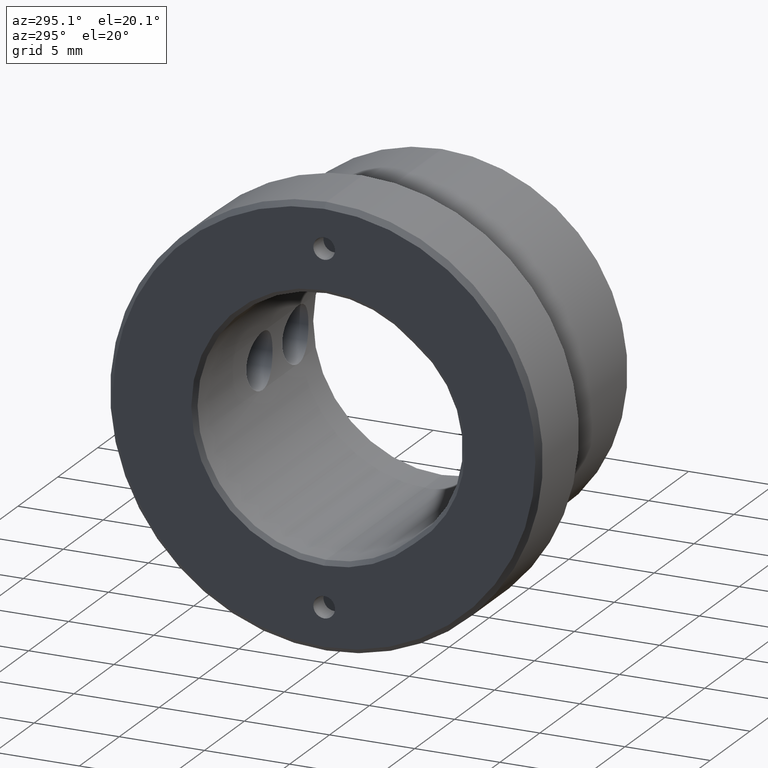
[diagram: clean part render]
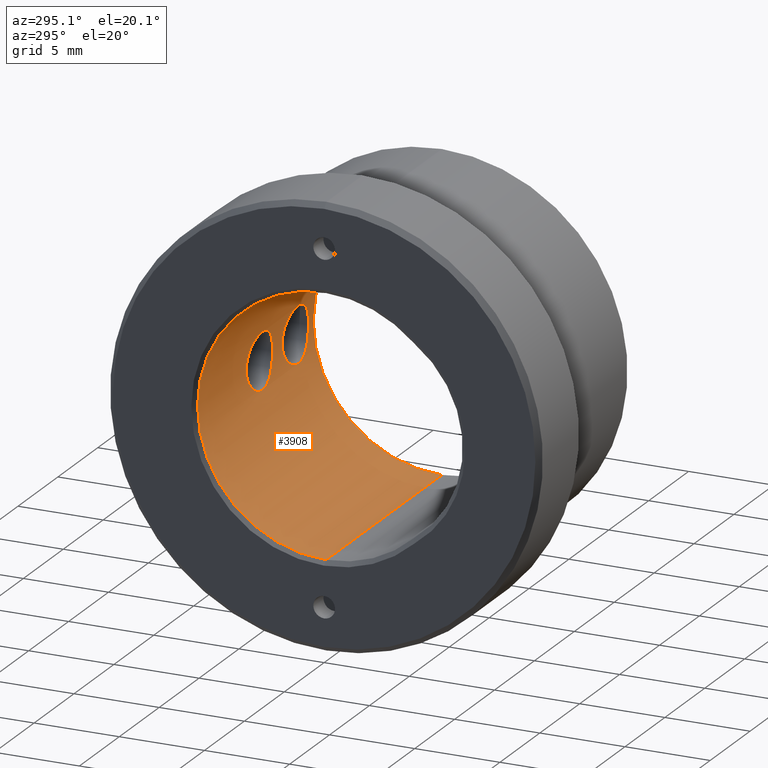
[diagram: same view with one face highlighted and labeled with its STEP entity id]
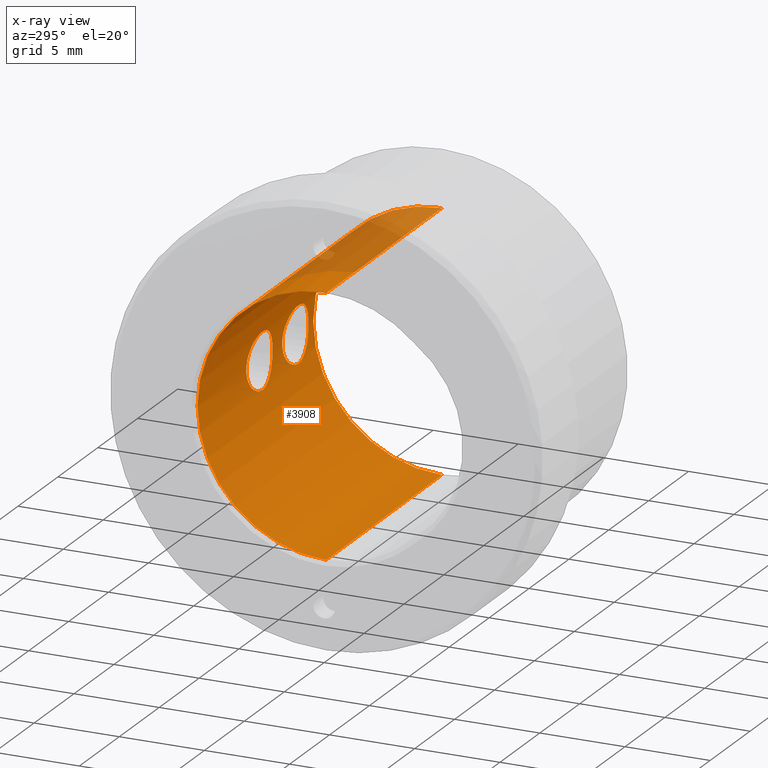
[diagram: x-ray of the same camera — body ghosted, the highlighted face saturated]
A machine part, auxiliary view. The second image highlights one B-rep face of the part: STEP entity #3908.
The next image is the same camera in x-ray: the body ghosted, the highlighted face saturated — about 10% of this face is hidden behind the body in this view.
In plain terms, the highlighted cylindrical surface (partial cylindrical patch) has radius 7.55 mm, axis along (-1, -0, -0).
Its self-contained STEP definition (entity closure, byte-faithful):
#58 = CARTESIAN_POINT ( 'NONE',  ( 0.2499999999999967500, 0.0000000000000000000, 0.0000000000000000000 ) ) ;
#69 = CARTESIAN_POINT ( 'NONE',  ( 9.650042575250607200, 7.550009304524274400, -0.1073363608088370400 ) ) ;
#83 = EDGE_CURVE ( 'NONE', #2775, #788, #2090, .T. ) ;
#90 = CARTESIAN_POINT ( 'NONE',  ( 14.15004257525060200, 7.550009304524274400, -0.1073363608088380200 ) ) ;
#114 = CARTESIAN_POINT ( 'NONE',  ( 11.67222748381330200, 7.413318146423143200, -1.431410878810329000 ) ) ;
#156 = CARTESIAN_POINT ( 'NONE',  ( 10.84995346425963400, 7.550010170061572300, 0.1081851496566004600 ) ) ;
#160 = CARTESIAN_POINT ( 'NONE',  ( 6.402596446735329600, 7.538652208696569300, 0.4271282737250882100 ) ) ;
#222 = AXIS2_PLACEMENT_3D ( 'NONE', #58, #2255, #652 ) ;
#223 = CARTESIAN_POINT ( 'NONE',  ( 12.49999999999999800, 7.367496182557546900, -1.649999999999992600 ) ) ;
#343 = CARTESIAN_POINT ( 'NONE',  ( 13.03250685552225500, 7.386047717079979000, -1.565433213492498200 ) ) ;
#350 = CARTESIAN_POINT ( 'NONE',  ( 11.49284813091026800, 7.435484751443143900, -1.311407471047682000 ) ) ;
#353 = CARTESIAN_POINT ( 'NONE',  ( 13.94149156987591600, 7.506756197861075300, 0.8311245946401043500 ) ) ;
#363 = B_SPLINE_CURVE_WITH_KNOTS ( 'NONE', 3,
 ( #1045, #2314, #1395, #446, #430, #779, #2035, #1085, #763, #2618, #1368, #1407, #3591, #2928, #1718, #160, #1705, #2632, #2942, #3552, #3878, #751, #2967, #3258, #1097, #3284 ),
 .UNSPECIFIED., .F., .F.,
 ( 4, 2, 2, 2, 2, 2, 2, 2, 2, 2, 2, 2, 4 ),
 ( 0.005174276572213011600, 0.005820890057941798500, 0.006144196800806194100, 0.006467503543670588900, 0.006790810286534983700, 0.007114117029399378400, 0.007760730515128170600, 0.008084037257992567100, 0.008407344000856962700, 0.009053957486585752200, 0.009700570972314543500, 0.01002387771517894100, 0.01034718445804333600 ),
 .UNSPECIFIED. ) ;
#372 = CARTESIAN_POINT ( 'NONE',  ( 12.50000000000000000, 7.367496182557546000, 1.649999999999992600 ) ) ;
#395 = CARTESIAN_POINT ( 'NONE',  ( 8.429638086257888600, 7.379251367485811600, -1.596753308477472100 ) ) ;
#425 = CARTESIAN_POINT ( 'NONE',  ( 10.90259644673532900, 7.538652208696567500, 0.4271282737250907100 ) ) ;
#430 = CARTESIAN_POINT ( 'NONE',  ( 7.172227483813302700, 7.413318146423141500, -1.431410878810329700 ) ) ;
#446 = CARTESIAN_POINT ( 'NONE',  ( 7.268628522956301900, 7.403047408088682800, -1.482955722260139300 ) ) ;
#482 = CARTESIAN_POINT ( 'NONE',  ( 11.48407202336760400, 7.435706328169265700, 1.317698438870044100 ) ) ;
#538 = EDGE_CURVE ( 'NONE', #975, #1061, #927, .T. ) ;
#552 = CARTESIAN_POINT ( 'NONE',  ( 0.2499999999999967500, 0.0000000000000000000, 7.549999999999999800 ) ) ;
#562 = EDGE_CURVE ( 'NONE', #1217, #2581, #1028, .T. ) ;
#652 = DIRECTION ( 'NONE',  ( 0.0000000000000000000, 0.0000000000000000000, -1.000000000000000000 ) ) ;
#663 = CARTESIAN_POINT ( 'NONE',  ( 14.10626795706226800, 7.540131790491947200, 0.4342456539264571400 ) ) ;
#688 = CARTESIAN_POINT ( 'NONE',  ( 8.827490050003470800, 7.413288169064037100, 1.431560640407858700 ) ) ;
#702 = CARTESIAN_POINT ( 'NONE',  ( 8.731858700189613700, 7.403090873739658100, -1.482743248185747900 ) ) ;
#706 = CARTESIAN_POINT ( 'NONE',  ( 14.06564643860013100, 7.531905221089373500, -0.5319720460853245600 ) ) ;
#733 = CARTESIAN_POINT ( 'NONE',  ( 8.107870425101650000, 7.367496182557546000, -1.649999999999993500 ) ) ;
#751 = CARTESIAN_POINT ( 'NONE',  ( 7.465122541343775200, 7.386225137069062400, 1.564594660715583600 ) ) ;
#763 = CARTESIAN_POINT ( 'NONE',  ( 6.688355436307492000, 7.483112087300542100, -1.006784240855641600 ) ) ;
#774 = CARTESIAN_POINT ( 'NONE',  ( 11.96512254134377400, 7.386225137069059700, 1.564594660715583800 ) ) ;
#779 = CARTESIAN_POINT ( 'NONE',  ( 6.992848130910271500, 7.435484751443145700, -1.311407471047683100 ) ) ;
#788 = VERTEX_POINT ( 'NONE', #552 ) ;
#831 = CARTESIAN_POINT ( 'NONE',  ( 0.2499999999999967500, 9.246083333562516700E-016, -7.549999999999999800 ) ) ;
#927 = B_SPLINE_CURVE_WITH_KNOTS ( 'NONE', 3,
 ( #2561, #1350, #3224, #1989, #1947, #1675, #688, #2851, #991, #1029, #3827, #3840, #1973, #69, #1335, #2864, #3533, #3524, #2603, #3492, #2267, #2281, #702, #1643, #395, #2252, #733, #1661 ),
 .UNSPECIFIED., .F., .F.,
 ( 4, 2, 2, 2, 2, 2, 2, 2, 2, 2, 2, 2, 2, 4 ),
 ( 0.0000000000000000000, 0.0003233922857633138700, 0.0006467845715266277500, 0.0009701768572899417300, 0.001293569143053255500, 0.001940353714579882600, 0.002587138286106509700, 0.002910530571869823800, 0.003233922857633137400, 0.003880707429159765200, 0.004204099714923076700, 0.004527492000686388600, 0.004850884286449699600, 0.005174276572213011600 ),
 .UNSPECIFIED. ) ;
#955 = CYLINDRICAL_SURFACE ( 'NONE', #1541, 7.549999999999999800 ) ;
#973 = CARTESIAN_POINT ( 'NONE',  ( 14.75000000000000400, 0.0000000000000000000, 0.0000000000000000000 ) ) ;
#975 = VERTEX_POINT ( 'NONE', #3606 ) ;
#984 = CARTESIAN_POINT ( 'NONE',  ( 12.92963808625788700, 7.379251367485811600, -1.596753308477471000 ) ) ;
#991 = CARTESIAN_POINT ( 'NONE',  ( 9.091143952821255400, 7.447481726496986800, 1.242342002891957600 ) ) ;
#1028 = B_SPLINE_CURVE_WITH_KNOTS ( 'NONE', 3,
 ( #1308, #2295, #1363, #3188, #114, #350, #1618, #3812, #3915, #1727, #2032, #3887, #1433, #156, #3617, #425, #1093, #3947, #3934, #482, #3602, #774, #1379, #3562, #3237, #3899 ),
 .UNSPECIFIED., .F., .F.,
 ( 4, 2, 2, 2, 2, 2, 2, 2, 2, 2, 2, 2, 4 ),
 ( 0.005174276572213010700, 0.005820890057941806300, 0.006144196800806201100, 0.006467503543670596700, 0.006790810286534991500, 0.007114117029399386200, 0.007760730515128176600, 0.008084037257992572300, 0.008407344000856967900, 0.009053957486585759200, 0.009700570972314550400, 0.01002387771517894400, 0.01034718445804334000 ),
 .UNSPECIFIED. ) ;
#1029 = CARTESIAN_POINT ( 'NONE',  ( 9.318666561189900200, 7.483076724350284300, 1.014718489095183900 ) ) ;
#1045 = CARTESIAN_POINT ( 'NONE',  ( 8.000000000000000000, 7.367496182557546000, -1.649999999999993500 ) ) ;
#1061 = VERTEX_POINT ( 'NONE', #2654 ) ;
#1085 = CARTESIAN_POINT ( 'NONE',  ( 6.757836745639281200, 7.471099059084455300, -1.091374026934202500 ) ) ;
#1093 = CARTESIAN_POINT ( 'NONE',  ( 10.93453240110041600, 7.531869152661635700, 0.5323896248454487200 ) ) ;
#1097 = CARTESIAN_POINT ( 'NONE',  ( 7.890652729299774600, 7.367496182557544200, 1.649999999999993200 ) ) ;
#1110 = ORIENTED_EDGE ( 'NONE', *, *, #3099, .T. ) ;
#1173 = EDGE_LOOP ( 'NONE', ( #1110, #4077 ) ) ;
#1205 = LINE ( 'NONE', #2269, #1354 ) ;
#1217 = VERTEX_POINT ( 'NONE', #223 ) ;
#1297 = CARTESIAN_POINT ( 'NONE',  ( 12.60787042510165500, 7.367496182557549600, -1.649999999999993700 ) ) ;
#1302 = DIRECTION ( 'NONE',  ( 0.0000000000000000000, 0.0000000000000000000, -1.000000000000000000 ) ) ;
#1308 = CARTESIAN_POINT ( 'NONE',  ( 12.49999999999999800, 7.367496182557546900, -1.649999999999992600 ) ) ;
#1311 = CARTESIAN_POINT ( 'NONE',  ( 14.14991446245525700, 7.549981306365785000, 0.2166302022949852200 ) ) ;
#1335 = CARTESIAN_POINT ( 'NONE',  ( 9.639224549521712100, 7.547624158386394600, -0.2170583249850983300 ) ) ;
#1338 = CARTESIAN_POINT ( 'NONE',  ( 13.81866656118989500, 7.483076724350285100, 1.014718489095182800 ) ) ;
#1348 = EDGE_CURVE ( 'NONE', #3474, #3761, #1205, .T. ) ;
#1350 = CARTESIAN_POINT ( 'NONE',  ( 8.109376202613123800, 7.367496182557546000, 1.649999999999993700 ) ) ;
#1354 = VECTOR ( 'NONE', #1964, 1000.000000000000000 ) ;
#1363 = CARTESIAN_POINT ( 'NONE',  ( 12.06660248078671500, 7.377578204638844300, -1.606522404701693100 ) ) ;
#1368 = CARTESIAN_POINT ( 'NONE',  ( 6.518139305260763900, 7.514934905778913400, -0.7337312531578729100 ) ) ;
#1379 = CARTESIAN_POINT ( 'NONE',  ( 12.06995407325534100, 7.379270766438144900, 1.596664600924206000 ) ) ;
#1395 = CARTESIAN_POINT ( 'NONE',  ( 7.566602480786708700, 7.377578204638843400, -1.606522404701693700 ) ) ;
#1407 = CARTESIAN_POINT ( 'NONE',  ( 6.393155655669840300, 7.540244745685035000, -0.4331765632959330700 ) ) ;
#1418 = EDGE_LOOP ( 'NONE', ( #3612, #2674, #2771, #3568 ) ) ;
#1433 = CARTESIAN_POINT ( 'NONE',  ( 10.85009352644559900, 7.549979560447455100, -0.2184925980058583000 ) ) ;
#1541 = AXIS2_PLACEMENT_3D ( 'NONE', #2520, #3187, #1988 ) ;
#1618 = CARTESIAN_POINT ( 'NONE',  ( 11.41001944183817500, 7.447308857388644100, -1.243386182961606400 ) ) ;
#1638 = DIRECTION ( 'NONE',  ( 1.000000000000000000, -0.0000000000000000000, -0.0000000000000000000 ) ) ;
#1643 = CARTESIAN_POINT ( 'NONE',  ( 8.532506855522257200, 7.386047717079980800, -1.565433213492499100 ) ) ;
#1644 = CARTESIAN_POINT ( 'NONE',  ( 14.75000000000000400, 0.0000000000000000000, 7.549999999999999800 ) ) ;
#1661 = CARTESIAN_POINT ( 'NONE',  ( 8.000000000000000000, 7.367496182557546000, -1.649999999999993500 ) ) ;
#1675 = CARTESIAN_POINT ( 'NONE',  ( 8.732845435019484600, 7.403186414490172700, 1.482269878471758300 ) ) ;
#1705 = CARTESIAN_POINT ( 'NONE',  ( 6.434532401100415000, 7.531869152661636600, 0.5323896248454470500 ) ) ;
#1718 = CARTESIAN_POINT ( 'NONE',  ( 6.360582026827768400, 7.547666546851631100, 0.2155119101994667800 ) ) ;
#1727 = CARTESIAN_POINT ( 'NONE',  ( 11.06895184358016800, 7.504961950312070600, -0.8283279200333533200 ) ) ;
#1751 = VECTOR ( 'NONE', #3481, 1000.000000000000000 ) ;
#1850 = EDGE_CURVE ( 'NONE', #788, #3761, #2229, .T. ) ;
#1937 = CARTESIAN_POINT ( 'NONE',  ( 12.71741357021782000, 7.369941011968327500, -1.639189236416049600 ) ) ;
#1947 = CARTESIAN_POINT ( 'NONE',  ( 8.533181931363026600, 7.386094341937082100, 1.565216742921431600 ) ) ;
#1964 = DIRECTION ( 'NONE',  ( -1.000000000000000000, -0.0000000000000000000, -0.0000000000000000000 ) ) ;
#1973 = CARTESIAN_POINT ( 'NONE',  ( 9.649914462455260600, 7.549981306365785900, 0.2166302022949863900 ) ) ;
#1988 = DIRECTION ( 'NONE',  ( 0.0000000000000000000, 0.0000000000000000000, 1.000000000000000000 ) ) ;
#1989 = CARTESIAN_POINT ( 'NONE',  ( 8.428200647547722500, 7.379174109485785700, 1.597108148841726700 ) ) ;
#2032 = CARTESIAN_POINT ( 'NONE',  ( 11.01813930526076000, 7.514934905778911700, -0.7337312531578718000 ) ) ;
#2035 = CARTESIAN_POINT ( 'NONE',  ( 6.910019441838178600, 7.447308857388645000, -1.243386182961608000 ) ) ;
#2036 = CIRCLE ( 'NONE', #3819, 7.549999999999999800 ) ;
#2090 = LINE ( 'NONE', #2172, #1751 ) ;
#2171 = CARTESIAN_POINT ( 'NONE',  ( 12.60937620261312600, 7.367496182557547800, 1.649999999999993000 ) ) ;
#2172 = CARTESIAN_POINT ( 'NONE',  ( 15.00000000000000000, 0.0000000000000000000, 7.549999999999999800 ) ) ;
#2182 = B_SPLINE_CURVE_WITH_KNOTS ( 'NONE', 3,
 ( #3411, #2171, #2837, #3172, #4051, #2410, #3202, #2226, #3213, #1338, #353, #663, #1311, #90, #3191, #2578, #706, #3165, #3512, #2841, #2240, #2541, #3528, #343, #984, #1937, #1297, #3485 ),
 .UNSPECIFIED., .F., .F.,
 ( 4, 2, 2, 2, 2, 2, 2, 2, 2, 2, 2, 2, 2, 4 ),
 ( 1.748223473168675600E-018, 0.0003233922857633127900, 0.0006467845715266238400, 0.0009701768572899349000, 0.001293569143053246000, 0.001940353714579871700, 0.002587138286106497500, 0.002910530571869809900, 0.003233922857633123600, 0.003880707429159750400, 0.004204099714923065400, 0.004527492000686380800, 0.004850884286449695300, 0.005174276572213010700 ),
 .UNSPECIFIED. ) ;
#2226 = CARTESIAN_POINT ( 'NONE',  ( 13.50660650665226500, 7.435412453520299000, 1.311811339631211700 ) ) ;
#2229 = CIRCLE ( 'NONE', #222, 7.549999999999999800 ) ;
#2240 = CARTESIAN_POINT ( 'NONE',  ( 13.50693362418114800, 7.435460795871580200, -1.311529486362892800 ) ) ;
#2252 = CARTESIAN_POINT ( 'NONE',  ( 8.217413570217816600, 7.369941011968326600, -1.639189236416050300 ) ) ;
#2255 = DIRECTION ( 'NONE',  ( -1.000000000000000000, 0.0000000000000000000, 0.0000000000000000000 ) ) ;
#2267 = CARTESIAN_POINT ( 'NONE',  ( 9.006933624181147700, 7.435460795871579300, -1.311529486362893500 ) ) ;
#2269 = CARTESIAN_POINT ( 'NONE',  ( 15.00000000000000000, 9.246083333562516700E-016, -7.549999999999999800 ) ) ;
#2281 = CARTESIAN_POINT ( 'NONE',  ( 8.828499418305900900, 7.413404967325732300, -1.430948507449756300 ) ) ;
#2295 = CARTESIAN_POINT ( 'NONE',  ( 12.28431621701368400, 7.367496182557548700, -1.649999999999993000 ) ) ;
#2299 = EDGE_CURVE ( 'NONE', #3474, #2775, #2036, .T. ) ;
#2314 = CARTESIAN_POINT ( 'NONE',  ( 7.784316217013681300, 7.367496182557546000, -1.649999999999993000 ) ) ;
#2410 = CARTESIAN_POINT ( 'NONE',  ( 13.23284543501949000, 7.403186414490175300, 1.482269878471757000 ) ) ;
#2428 = FACE_OUTER_BOUND ( 'NONE', #1418, .T. ) ;
#2520 = CARTESIAN_POINT ( 'NONE',  ( 15.00000000000000000, 0.0000000000000000000, 0.0000000000000000000 ) ) ;
#2541 = CARTESIAN_POINT ( 'NONE',  ( 13.32849941830589700, 7.413404967325732300, -1.430948507449755400 ) ) ;
#2561 = CARTESIAN_POINT ( 'NONE',  ( 8.000000000000000000, 7.367496182557546000, 1.649999999999993500 ) ) ;
#2578 = CARTESIAN_POINT ( 'NONE',  ( 14.09692709993289300, 7.538550886941292700, -0.4289467072958162400 ) ) ;
#2581 = VERTEX_POINT ( 'NONE', #372 ) ;
#2603 = CARTESIAN_POINT ( 'NONE',  ( 9.319737037743975000, 7.483234815591838000, -1.013770499748463800 ) ) ;
#2618 = CARTESIAN_POINT ( 'NONE',  ( 6.568951843580169500, 7.504961950312074100, -0.8283279200333543100 ) ) ;
#2632 = CARTESIAN_POINT ( 'NONE',  ( 6.558439392418130800, 7.506767180602974300, 0.8312118129921916000 ) ) ;
#2644 = CARTESIAN_POINT ( 'NONE',  ( 14.75000000000000400, 9.246083333562516700E-016, -7.549999999999999800 ) ) ;
#2654 = CARTESIAN_POINT ( 'NONE',  ( 8.000000000000000000, 7.367496182557546000, -1.649999999999993500 ) ) ;
#2674 = ORIENTED_EDGE ( 'NONE', *, *, #2299, .T. ) ;
#2771 = ORIENTED_EDGE ( 'NONE', *, *, #83, .T. ) ;
#2775 = VERTEX_POINT ( 'NONE', #1644 ) ;
#2837 = CARTESIAN_POINT ( 'NONE',  ( 12.71685622990116100, 7.369930893026880100, 1.639232628155622200 ) ) ;
#2841 = CARTESIAN_POINT ( 'NONE',  ( 13.58990544707439300, 7.447292679067044400, -1.243519294251574000 ) ) ;
#2851 = CARTESIAN_POINT ( 'NONE',  ( 9.006606506652262900, 7.435412453520300800, 1.311811339631213700 ) ) ;
#2864 = CARTESIAN_POINT ( 'NONE',  ( 9.596927099932891300, 7.538550886941291800, -0.4289467072958155800 ) ) ;
#2928 = CARTESIAN_POINT ( 'NONE',  ( 6.349953464259636200, 7.550010170061575800, 0.1081851496565990800 ) ) ;
#2942 = CARTESIAN_POINT ( 'NONE',  ( 6.681133219959495100, 7.483116231127676000, 1.014410787605562100 ) ) ;
#2967 = CARTESIAN_POINT ( 'NONE',  ( 7.569954073255342300, 7.379270766438144900, 1.596664600924207400 ) ) ;
#2975 = ORIENTED_EDGE ( 'NONE', *, *, #538, .T. ) ;
#3099 = EDGE_CURVE ( 'NONE', #2581, #1217, #2182, .T. ) ;
#3165 = CARTESIAN_POINT ( 'NONE',  ( 13.94111092478094000, 7.506676405214965300, -0.8322688367030173200 ) ) ;
#3172 = CARTESIAN_POINT ( 'NONE',  ( 12.92820064754772200, 7.379174109485786600, 1.597108148841726000 ) ) ;
#3187 = DIRECTION ( 'NONE',  ( -1.000000000000000000, -0.0000000000000000000, -0.0000000000000000000 ) ) ;
#3188 = CARTESIAN_POINT ( 'NONE',  ( 11.76862852295630400, 7.403047408088683700, -1.482955722260139100 ) ) ;
#3191 = CARTESIAN_POINT ( 'NONE',  ( 14.13922454952171000, 7.547624158386397200, -0.2170583249850988600 ) ) ;
#3199 = FACE_BOUND ( 'NONE', #3310, .T. ) ;
#3202 = CARTESIAN_POINT ( 'NONE',  ( 13.32749005000347300, 7.413288169064038900, 1.431560640407856900 ) ) ;
#3213 = CARTESIAN_POINT ( 'NONE',  ( 13.59114395282125400, 7.447481726496987700, 1.242342002891955800 ) ) ;
#3224 = CARTESIAN_POINT ( 'NONE',  ( 8.216856229901159400, 7.369930893026879200, 1.639232628155622700 ) ) ;
#3237 = CARTESIAN_POINT ( 'NONE',  ( 12.39065272929977700, 7.367496182557546000, 1.649999999999992800 ) ) ;
#3258 = CARTESIAN_POINT ( 'NONE',  ( 7.782785118837114900, 7.369930790034432600, 1.639236115498777600 ) ) ;
#3284 = CARTESIAN_POINT ( 'NONE',  ( 8.000000000000000000, 7.367496182557546000, 1.649999999999993500 ) ) ;
#3310 = EDGE_LOOP ( 'NONE', ( #2975, #3323 ) ) ;
#3323 = ORIENTED_EDGE ( 'NONE', *, *, #3523, .T. ) ;
#3411 = CARTESIAN_POINT ( 'NONE',  ( 12.50000000000000000, 7.367496182557546000, 1.649999999999992600 ) ) ;
#3474 = VERTEX_POINT ( 'NONE', #2644 ) ;
#3481 = DIRECTION ( 'NONE',  ( -1.000000000000000000, -0.0000000000000000000, -0.0000000000000000000 ) ) ;
#3485 = CARTESIAN_POINT ( 'NONE',  ( 12.49999999999999800, 7.367496182557546900, -1.649999999999992600 ) ) ;
#3492 = CARTESIAN_POINT ( 'NONE',  ( 9.089905447074398700, 7.447292679067044400, -1.243519294251574900 ) ) ;
#3512 = CARTESIAN_POINT ( 'NONE',  ( 13.81973703774397100, 7.483234815591836200, -1.013770499748462700 ) ) ;
#3523 = EDGE_CURVE ( 'NONE', #1061, #975, #363, .T. ) ;
#3524 = CARTESIAN_POINT ( 'NONE',  ( 9.441110924780943500, 7.506676405214967000, -0.8322688367030179900 ) ) ;
#3528 = CARTESIAN_POINT ( 'NONE',  ( 13.23185870018961600, 7.403090873739659900, -1.482743248185748300 ) ) ;
#3533 = CARTESIAN_POINT ( 'NONE',  ( 9.565646438600133200, 7.531905221089372700, -0.5319720460853238900 ) ) ;
#3552 = CARTESIAN_POINT ( 'NONE',  ( 6.984072023367604100, 7.435706328169265700, 1.317698438870043500 ) ) ;
#3562 = CARTESIAN_POINT ( 'NONE',  ( 12.28278511883711700, 7.369930790034432600, 1.639236115498777100 ) ) ;
#3568 = ORIENTED_EDGE ( 'NONE', *, *, #1850, .T. ) ;
#3591 = CARTESIAN_POINT ( 'NONE',  ( 6.350093526445595800, 7.549979560447455100, -0.2184925980058590700 ) ) ;
#3602 = CARTESIAN_POINT ( 'NONE',  ( 11.66746407037146400, 7.411749293715470100, 1.440689181728883400 ) ) ;
#3606 = CARTESIAN_POINT ( 'NONE',  ( 8.000000000000000000, 7.367496182557546000, 1.649999999999993500 ) ) ;
#3612 = ORIENTED_EDGE ( 'NONE', *, *, #1348, .F. ) ;
#3617 = CARTESIAN_POINT ( 'NONE',  ( 10.86058202682776800, 7.547666546851631100, 0.2155119101994689400 ) ) ;
#3761 = VERTEX_POINT ( 'NONE', #831 ) ;
#3812 = CARTESIAN_POINT ( 'NONE',  ( 11.25783674563927400, 7.471099059084453500, -1.091374026934201200 ) ) ;
#3819 = AXIS2_PLACEMENT_3D ( 'NONE', #973, #1638, #1302 ) ;
#3827 = CARTESIAN_POINT ( 'NONE',  ( 9.441491569875914500, 7.506756197861073500, 0.8311245946401059100 ) ) ;
#3840 = CARTESIAN_POINT ( 'NONE',  ( 9.606267957062277300, 7.540131790491949800, 0.4342456539264585900 ) ) ;
#3878 = CARTESIAN_POINT ( 'NONE',  ( 7.167464070371464900, 7.411749293715471900, 1.440689181728883400 ) ) ;
#3887 = CARTESIAN_POINT ( 'NONE',  ( 10.89315565566984000, 7.540244745685035000, -0.4331765632959320200 ) ) ;
#3899 = CARTESIAN_POINT ( 'NONE',  ( 12.50000000000000000, 7.367496182557546000, 1.649999999999992600 ) ) ;
#3908 = ADVANCED_FACE ( 'NONE', ( #2428, #3199, #4061 ), #955, .F. ) ;
#3915 = CARTESIAN_POINT ( 'NONE',  ( 11.18835543630749300, 7.483112087300543000, -1.006784240855640900 ) ) ;
#3934 = CARTESIAN_POINT ( 'NONE',  ( 11.18113321995950000, 7.483116231127677800, 1.014410787605562800 ) ) ;
#3947 = CARTESIAN_POINT ( 'NONE',  ( 11.05843939241813300, 7.506767180602971700, 0.8312118129921938200 ) ) ;
#4051 = CARTESIAN_POINT ( 'NONE',  ( 13.03318193136302800, 7.386094341937082100, 1.565216742921430300 ) ) ;
#4061 = FACE_BOUND ( 'NONE', #1173, .T. ) ;
#4077 = ORIENTED_EDGE ( 'NONE', *, *, #562, .T. ) ;